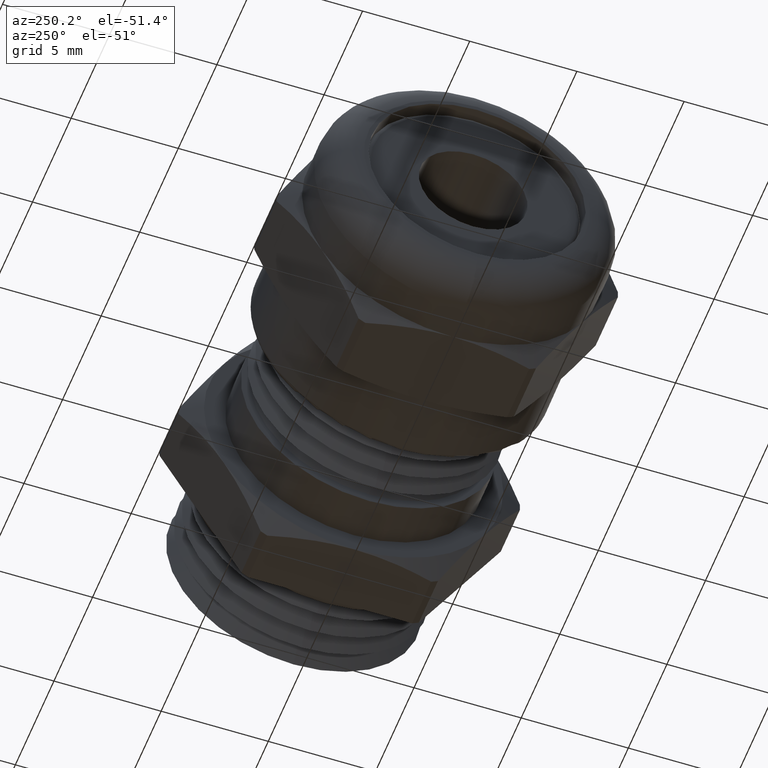
[diagram: clean part render]
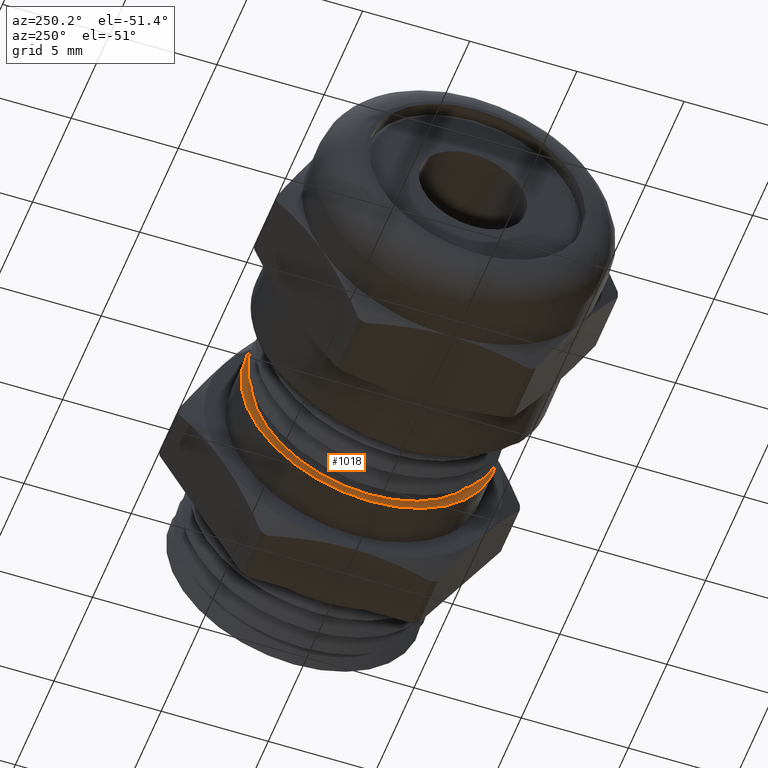
[diagram: same view with one face highlighted and labeled with its STEP entity id]
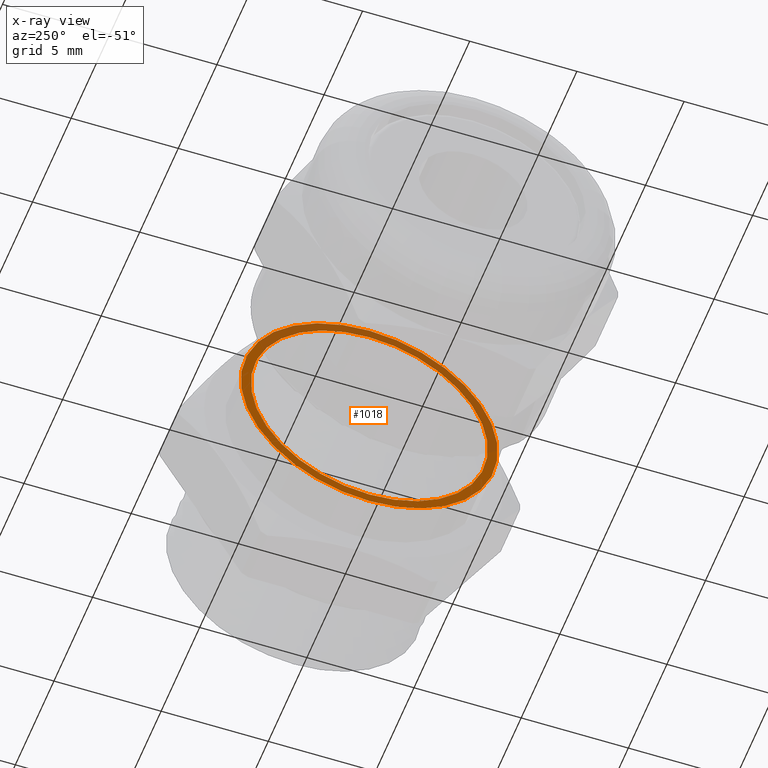
[diagram: x-ray of the same camera — body ghosted, the highlighted face saturated]
A machine part, auxiliary view. The second image highlights one B-rep face of the part: STEP entity #1018.
The next image is the same camera in x-ray: the body ghosted, the highlighted face saturated — about 43% of this face is hidden behind the body in this view.
In plain terms, the highlighted planar face has unit normal (-1, 0, 0).
Its self-contained STEP definition (entity closure, byte-faithful):
#404 = VERTEX_POINT ( 'NONE', #2023 ) ;
#406 = EDGE_CURVE ( 'NONE', #450, #404, #2022, .T. ) ;
#450 = VERTEX_POINT ( 'NONE', #2126 ) ;
#566 = EDGE_CURVE ( 'NONE', #567, #568, #2291, .T. ) ;
#567 = VERTEX_POINT ( 'NONE', #2347 ) ;
#568 = VERTEX_POINT ( 'NONE', #2346 ) ;
#982 = EDGE_CURVE ( 'NONE', #404, #450, #3043, .T. ) ;
#1018 = ADVANCED_FACE ( 'NONE', ( #3118, #3117 ), #3059, .T. ) ;
#1019 = EDGE_LOOP ( 'NONE', ( #1072, #1073 ) ) ;
#1072 = ORIENTED_EDGE ( 'NONE', *, *, #406, .T. ) ;
#1073 = ORIENTED_EDGE ( 'NONE', *, *, #982, .T. ) ;
#1074 = EDGE_LOOP ( 'NONE', ( #1075, #1077 ) ) ;
#1075 = ORIENTED_EDGE ( 'NONE', *, *, #1076, .T. ) ;
#1076 = EDGE_CURVE ( 'NONE', #568, #567, #3167, .T. ) ;
#1077 = ORIENTED_EDGE ( 'NONE', *, *, #566, .T. ) ;
#2018 = DIRECTION ( 'NONE',  ( 0.0000000000000000000, 0.0000000000000000000, 1.000000000000000000 ) ) ;
#2019 = DIRECTION ( 'NONE',  ( 1.000000000000000000, 0.0000000000000000000, 0.0000000000000000000 ) ) ;
#2020 = CARTESIAN_POINT ( 'NONE',  ( 0.07499999999999998300, 0.0000000000000000000, 0.0000000000000000000 ) ) ;
#2021 = AXIS2_PLACEMENT_3D ( 'NONE', #2020, #2019, #2018 ) ;
#2022 = CIRCLE ( 'NONE', #2021, 0.2176794919243113500 ) ;
#2023 = CARTESIAN_POINT ( 'NONE',  ( 0.07499999999999998300, 2.665804930251299900E-017, 0.2176794919243113500 ) ) ;
#2126 = CARTESIAN_POINT ( 'NONE',  ( 0.07499999999999998300, 0.0000000000000000000, -0.2176794919243113500 ) ) ;
#2290 = CARTESIAN_POINT ( 'NONE',  ( 0.07499999999999998300, 0.0000000000000000000, 0.0000000000000000000 ) ) ;
#2291 = CIRCLE ( 'NONE', #2350, 0.2360000000000000200 ) ;
#2346 = CARTESIAN_POINT ( 'NONE',  ( 0.07499999999999998300, 0.0000000000000000000, -0.2360000000000000200 ) ) ;
#2347 = CARTESIAN_POINT ( 'NONE',  ( 0.07499999999999998300, 2.890166445987753900E-017, 0.2360000000000000200 ) ) ;
#2348 = DIRECTION ( 'NONE',  ( 0.0000000000000000000, 0.0000000000000000000, 1.000000000000000000 ) ) ;
#2349 = DIRECTION ( 'NONE',  ( -1.000000000000000000, 0.0000000000000000000, 0.0000000000000000000 ) ) ;
#2350 = AXIS2_PLACEMENT_3D ( 'NONE', #2290, #2349, #2348 ) ;
#3040 = DIRECTION ( 'NONE',  ( 0.0000000000000000000, 0.0000000000000000000, 1.000000000000000000 ) ) ;
#3041 = DIRECTION ( 'NONE',  ( 1.000000000000000000, 0.0000000000000000000, 0.0000000000000000000 ) ) ;
#3042 = AXIS2_PLACEMENT_3D ( 'NONE', #3048, #3041, #3040 ) ;
#3043 = CIRCLE ( 'NONE', #3042, 0.2176794919243113500 ) ;
#3048 = CARTESIAN_POINT ( 'NONE',  ( 0.07499999999999998300, 0.0000000000000000000, 0.0000000000000000000 ) ) ;
#3059 = PLANE ( 'NONE',  #3116 ) ;
#3113 = DIRECTION ( 'NONE',  ( 0.0000000000000000000, 0.0000000000000000000, 1.000000000000000000 ) ) ;
#3114 = DIRECTION ( 'NONE',  ( -1.000000000000000000, 0.0000000000000000000, 0.0000000000000000000 ) ) ;
#3115 = CARTESIAN_POINT ( 'NONE',  ( 0.07499999999999998300, 0.0000000000000000000, 0.0000000000000000000 ) ) ;
#3116 = AXIS2_PLACEMENT_3D ( 'NONE', #3115, #3114, #3113 ) ;
#3117 = FACE_OUTER_BOUND ( 'NONE', #1074, .T. ) ;
#3118 = FACE_BOUND ( 'NONE', #1019, .T. ) ;
#3163 = DIRECTION ( 'NONE',  ( 0.0000000000000000000, 0.0000000000000000000, 1.000000000000000000 ) ) ;
#3164 = DIRECTION ( 'NONE',  ( -1.000000000000000000, 0.0000000000000000000, 0.0000000000000000000 ) ) ;
#3165 = CARTESIAN_POINT ( 'NONE',  ( 0.07499999999999998300, 0.0000000000000000000, 0.0000000000000000000 ) ) ;
#3166 = AXIS2_PLACEMENT_3D ( 'NONE', #3165, #3164, #3163 ) ;
#3167 = CIRCLE ( 'NONE', #3166, 0.2360000000000000200 ) ;